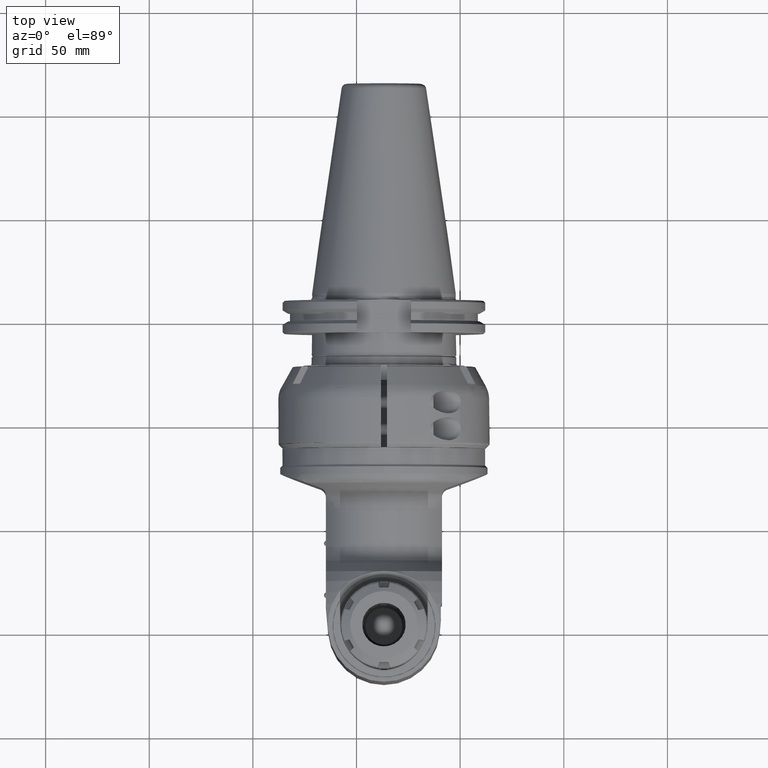
[diagram: clean part render]
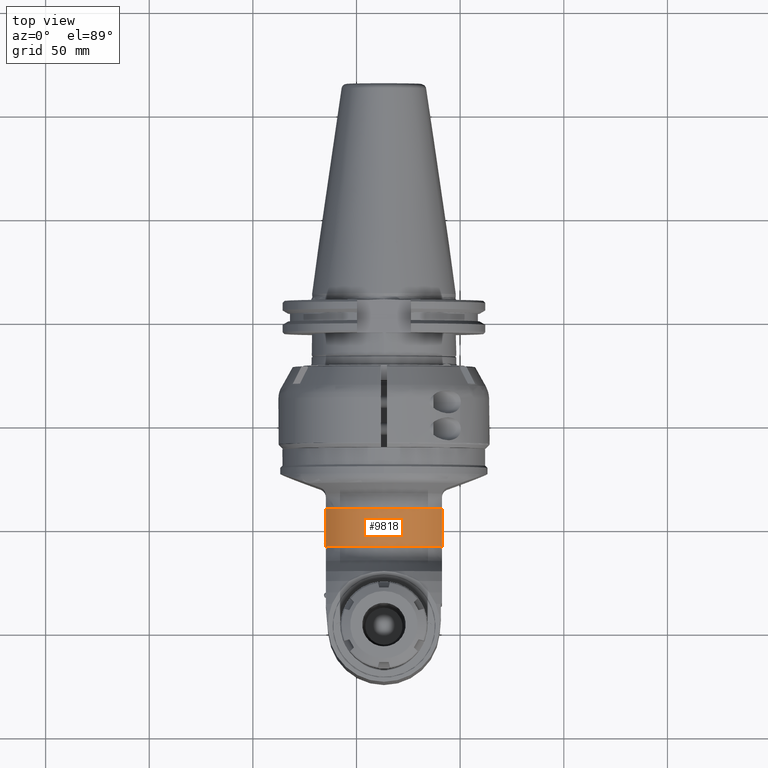
[diagram: same view with one face highlighted and labeled with its STEP entity id]
A machine part, top view. The second image highlights one B-rep face of the part: STEP entity #9818.
In plain terms, the highlighted cylindrical surface (partial cylindrical patch) has radius 32 mm, axis along (-0, 1, 0).
Its self-contained STEP definition (entity closure, byte-faithful):
#586=CYLINDRICAL_SURFACE('',#10498,32.);
#752=CIRCLE('',#10496,32.);
#754=CIRCLE('',#10499,32.);
#1315=FACE_OUTER_BOUND('',#1929,.T.);
#1929=EDGE_LOOP('',(#6534,#6535,#6536,#6537));
#2630=LINE('',#14869,#3300);
#2637=LINE('',#15033,#3307);
#3300=VECTOR('',#11735,18.39109797347);
#3307=VECTOR('',#11758,18.39109797347);
#3974=VERTEX_POINT('',#14855);
#3975=VERTEX_POINT('',#14868);
#3997=VERTEX_POINT('',#15008);
#4000=VERTEX_POINT('',#15032);
#4971=EDGE_CURVE('',#3975,#3974,#2630,.T.);
#4996=EDGE_CURVE('',#3997,#3974,#752,.T.);
#5000=EDGE_CURVE('',#3997,#4000,#2637,.T.);
#5001=EDGE_CURVE('',#3975,#4000,#754,.T.);
#6534=ORIENTED_EDGE('',*,*,#4996,.F.);
#6535=ORIENTED_EDGE('',*,*,#5000,.T.);
#6536=ORIENTED_EDGE('',*,*,#5001,.F.);
#6537=ORIENTED_EDGE('',*,*,#4971,.T.);
#9818=ADVANCED_FACE('',(#1315),#586,.T.);
#10496=AXIS2_PLACEMENT_3D('',#15009,#11752,#11753);
#10498=AXIS2_PLACEMENT_3D('',#15031,#11756,#11757);
#10499=AXIS2_PLACEMENT_3D('',#15034,#11759,#11760);
#11735=DIRECTION('',(-1.,0.,0.));
#11752=DIRECTION('center_axis',(-1.,0.,0.));
#11753=DIRECTION('ref_axis',(0.,-0.484122918275906,-0.875000000000012));
#11756=DIRECTION('center_axis',(-1.,0.,0.));
#11757=DIRECTION('ref_axis',(0.,-1.,0.));
#11758=DIRECTION('',(1.,0.,0.));
#11759=DIRECTION('center_axis',(1.,0.,0.));
#11760=DIRECTION('ref_axis',(0.,-1.,0.));
#14855=CARTESIAN_POINT('',(32.99009987301,-15.49193338483,28.));
#14868=CARTESIAN_POINT('',(51.38119784648,-15.49193338483,28.));
#14869=CARTESIAN_POINT('',(51.38119784648,-15.49193338483,28.));
#15008=CARTESIAN_POINT('',(32.99009987301,-15.49193338483,-28.));
#15009=CARTESIAN_POINT('Origin',(32.99009987301,0.,0.));
#15031=CARTESIAN_POINT('Origin',(41.64644709714,0.,0.));
#15032=CARTESIAN_POINT('',(51.38119784648,-15.49193338483,-28.));
#15033=CARTESIAN_POINT('',(32.99009987301,-15.49193338483,-28.));
#15034=CARTESIAN_POINT('Origin',(51.38119784648,0.,0.));